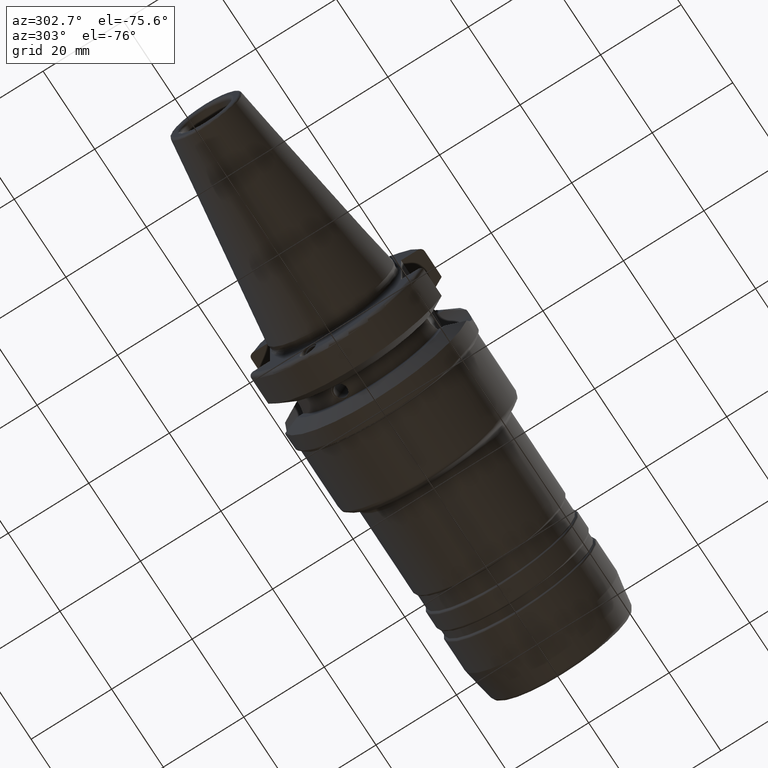
[diagram: clean part render]
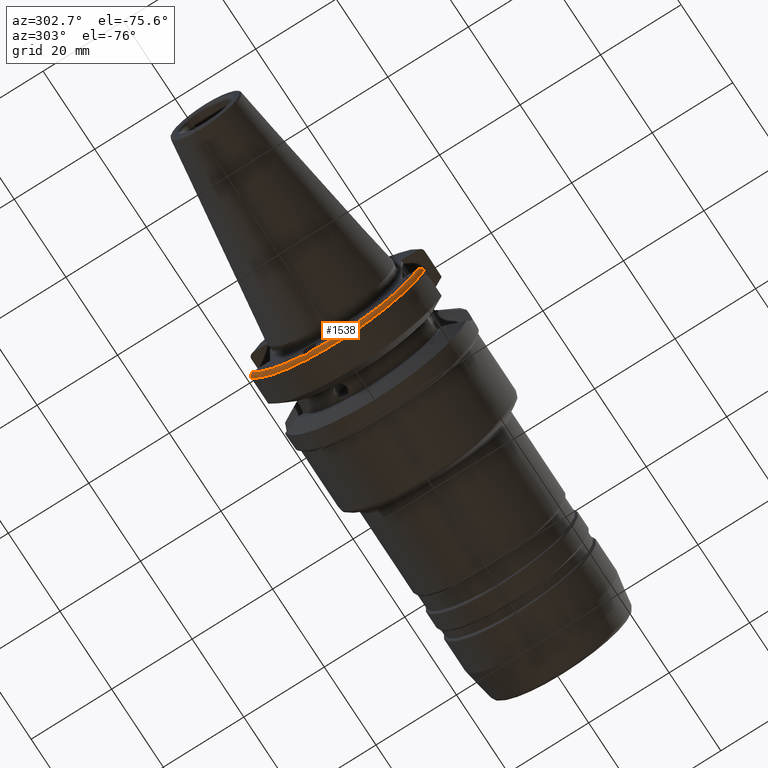
[diagram: same view with one face highlighted and labeled with its STEP entity id]
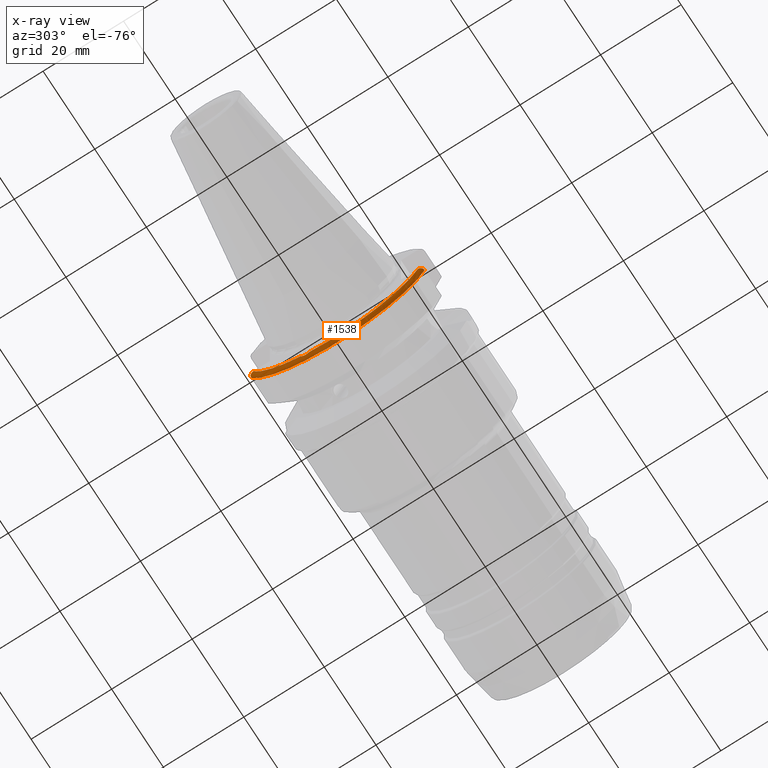
[diagram: x-ray of the same camera — body ghosted, the highlighted face saturated]
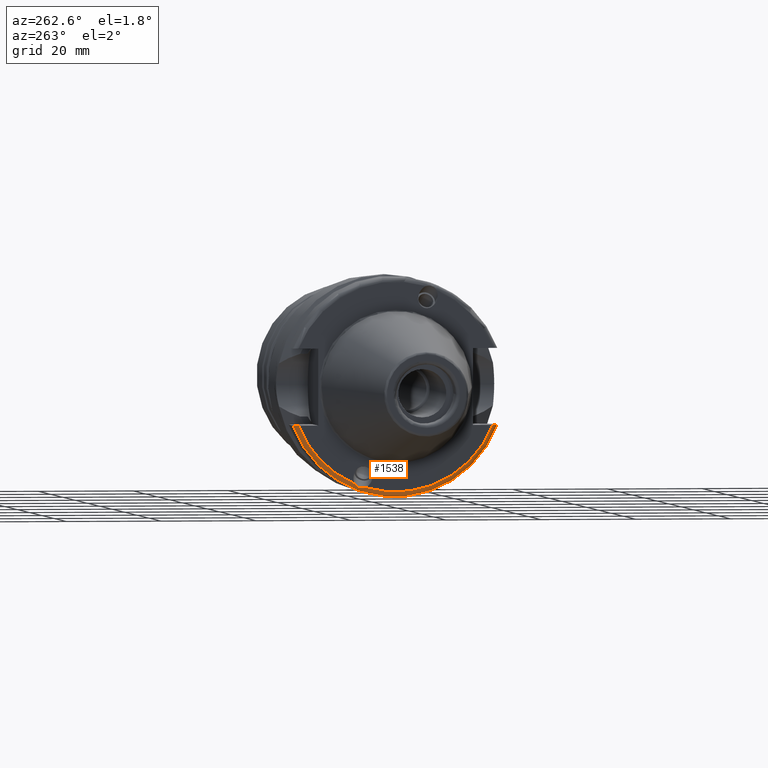
[diagram: same view with one face highlighted and labeled with its STEP entity id]
A machine part, auxiliary view. The second image highlights one B-rep face of the part: STEP entity #1538.
The next image is the same camera in x-ray: the body ghosted, the highlighted face saturated — about 0% of this face is hidden behind the body in this view.
A second angle (auxiliary view) of the same face is appended — the face is thin or edge-on in the first view.
In plain terms, the highlighted toroidal blend (fillet) surface has major radius 22 mm and minor (blend) radius 1 mm.
Its self-contained STEP definition (entity closure, byte-faithful):
#56=B_SPLINE_CURVE_WITH_KNOTS('',3,(#2793,#2794,#2795,#2796,#2797,#2798,
#2799,#2800,#2801,#2802,#2803,#2804,#2805,#2806),.UNSPECIFIED.,.F.,.F.,
(4,2,2,2,2,2,4),(-0.383450132328127,-0.351689221297584,-0.311522341711588,
-0.279107831710755,-0.246818888176327,-0.207066753659492,-0.173596618999697),
 .UNSPECIFIED.);
#63=B_SPLINE_CURVE_WITH_KNOTS('',3,(#2908,#2909,#2910,#2911,#2912,#2913,
#2914,#2915,#2916,#2917),.UNSPECIFIED.,.F.,.F.,(4,2,2,2,4),(0.,0.0362302924551293,
0.073702201526494,0.112799364340696,0.153429778670641),.UNSPECIFIED.);
#67=B_SPLINE_CURVE_WITH_KNOTS('',3,(#2975,#2976,#2977,#2978,#2979,#2980,
#2981,#2982,#2983,#2984),.UNSPECIFIED.,.F.,.F.,(4,2,2,2,4),(-0.153429778670641,
-0.112799364340696,-0.073702201526494,-0.0362302924551292,0.),
 .UNSPECIFIED.);
#370=FACE_OUTER_BOUND('',#472,.T.);
#472=EDGE_LOOP('',(#1329,#1330,#1331,#1332,#1333,#1334));
#565=CIRCLE('',#1727,22.);
#566=CIRCLE('',#1728,22.);
#580=CIRCLE('',#1756,23.);
#691=VERTEX_POINT('',#2790);
#692=VERTEX_POINT('',#2792);
#695=VERTEX_POINT('',#2813);
#696=VERTEX_POINT('',#2816);
#717=VERTEX_POINT('',#2907);
#727=VERTEX_POINT('',#2971);
#885=EDGE_CURVE('',#692,#691,#56,.T.);
#890=EDGE_CURVE('',#691,#695,#565,.T.);
#891=EDGE_CURVE('',#696,#692,#566,.T.);
#920=EDGE_CURVE('',#717,#696,#63,.T.);
#939=EDGE_CURVE('',#717,#727,#580,.T.);
#941=EDGE_CURVE('',#695,#727,#67,.T.);
#1329=ORIENTED_EDGE('',*,*,#885,.T.);
#1330=ORIENTED_EDGE('',*,*,#890,.T.);
#1331=ORIENTED_EDGE('',*,*,#941,.T.);
#1332=ORIENTED_EDGE('',*,*,#939,.F.);
#1333=ORIENTED_EDGE('',*,*,#920,.T.);
#1334=ORIENTED_EDGE('',*,*,#891,.T.);
#1464=TOROIDAL_SURFACE('',#1757,22.,1.00000000000001);
#1538=ADVANCED_FACE('',(#370),#1464,.T.);
#1727=AXIS2_PLACEMENT_3D('',#2815,#2127,#2128);
#1728=AXIS2_PLACEMENT_3D('',#2817,#2129,#2130);
#1756=AXIS2_PLACEMENT_3D('',#2972,#2206,#2207);
#1757=AXIS2_PLACEMENT_3D('',#2974,#2209,#2210);
#2127=DIRECTION('center_axis',(1.,1.62798202122572E-21,0.));
#2128=DIRECTION('ref_axis',(0.,0.,-1.));
#2129=DIRECTION('center_axis',(1.,1.62798202122572E-21,0.));
#2130=DIRECTION('ref_axis',(0.,0.,-1.));
#2206=DIRECTION('center_axis',(1.,1.62798202122572E-21,0.));
#2207=DIRECTION('ref_axis',(0.,0.,-1.));
#2209=DIRECTION('center_axis',(1.,1.62798202122572E-21,0.));
#2210=DIRECTION('ref_axis',(0.,0.,-1.));
#2790=CARTESIAN_POINT('',(2.,8.62571963431162,-20.2385019403673));
#2792=CARTESIAN_POINT('',(2.,6.40137369211843,-21.0480976540364));
#2793=CARTESIAN_POINT('Ctrl Pts',(1.99999999999999,6.40137369211843,-21.0480976540364));
#2794=CARTESIAN_POINT('Ctrl Pts',(1.99999999999999,6.51218075217939,-21.0925664729134));
#2795=CARTESIAN_POINT('Ctrl Pts',(2.00839141698566,6.632537505233,-21.1250853644164));
#2796=CARTESIAN_POINT('Ctrl Pts',(2.03416784761472,6.92628989879229,-21.1651926793778));
#2797=CARTESIAN_POINT('Ctrl Pts',(2.05162151175562,7.09315183259901,-21.1623301132091));
#2798=CARTESIAN_POINT('Ctrl Pts',(2.07231112910132,7.39163000172577,-21.11847888572));
#2799=CARTESIAN_POINT('Ctrl Pts',(2.07774372051908,7.52319126364718,-21.0850375933111));
#2800=CARTESIAN_POINT('Ctrl Pts',(2.07808045348674,7.77713511641414,-20.9935506719207));
#2801=CARTESIAN_POINT('Ctrl Pts',(2.07302683632531,7.89936063694556,-20.9356688169513));
#2802=CARTESIAN_POINT('Ctrl Pts',(2.0530921798178,8.15555780805866,-20.7805312349047));
#2803=CARTESIAN_POINT('Ctrl Pts',(2.03606073743508,8.28494218361154,-20.6777578738726));
#2804=CARTESIAN_POINT('Ctrl Pts',(2.00930022600955,8.49059272091547,-20.4567273373599));
#2805=CARTESIAN_POINT('Ctrl Pts',(1.99999999999999,8.56640089026486,-20.349439718379));
#2806=CARTESIAN_POINT('Ctrl Pts',(1.99999999999999,8.62571963431161,-20.2385019403673));
#2813=CARTESIAN_POINT('',(2.,20.4743131752936,-8.05));
#2815=CARTESIAN_POINT('Origin',(2.,2.08173882559189E-15,0.));
#2816=CARTESIAN_POINT('',(2.,-20.4743131752936,-8.05));
#2817=CARTESIAN_POINT('Origin',(2.,2.08173882559189E-15,0.));
#2907=CARTESIAN_POINT('',(2.99999999999999,-21.5452430944745,-8.05));
#2908=CARTESIAN_POINT('Ctrl Pts',(2.99999999999999,-21.5452430944745,-8.05));
#2909=CARTESIAN_POINT('Ctrl Pts',(2.8792323584829,-21.5452430944745,-8.05));
#2910=CARTESIAN_POINT('Ctrl Pts',(2.73736392622753,-21.5156543568949,-8.05));
#2911=CARTESIAN_POINT('Ctrl Pts',(2.51168046915071,-21.4185837950444,-8.05));
#2912=CARTESIAN_POINT('Ctrl Pts',(2.38899751698434,-21.3324722583086,-8.05));
#2913=CARTESIAN_POINT('Ctrl Pts',(2.21218447849375,-21.1484080721249,-8.05));
#2914=CARTESIAN_POINT('Ctrl Pts',(2.128361602777,-21.0163810455414,-8.05));
#2915=CARTESIAN_POINT('Ctrl Pts',(2.03008808262398,-20.7694601196341,-8.05));
#2916=CARTESIAN_POINT('Ctrl Pts',(1.99999999999999,-20.6097478897267,-8.05));
#2917=CARTESIAN_POINT('Ctrl Pts',(1.99999999999999,-20.4743131752936,-8.05));
#2971=CARTESIAN_POINT('',(2.99999999999999,21.5452430944745,-8.05));
#2972=CARTESIAN_POINT('Origin',(2.99999999999999,2.08174045357391E-15,0.));
#2974=CARTESIAN_POINT('Origin',(2.99999999999999,2.08174045357391E-15,0.));
#2975=CARTESIAN_POINT('Ctrl Pts',(1.99999999999999,20.4743131752936,-8.05));
#2976=CARTESIAN_POINT('Ctrl Pts',(1.99999999999999,20.6097478897267,-8.05));
#2977=CARTESIAN_POINT('Ctrl Pts',(2.03008808262398,20.7694601196341,-8.05));
#2978=CARTESIAN_POINT('Ctrl Pts',(2.128361602777,21.0163810455414,-8.05));
#2979=CARTESIAN_POINT('Ctrl Pts',(2.21218447849375,21.1484080721249,-8.05));
#2980=CARTESIAN_POINT('Ctrl Pts',(2.38899751698434,21.3324722583086,-8.05));
#2981=CARTESIAN_POINT('Ctrl Pts',(2.51168046915071,21.4185837950444,-8.05));
#2982=CARTESIAN_POINT('Ctrl Pts',(2.73736392622753,21.5156543568949,-8.05));
#2983=CARTESIAN_POINT('Ctrl Pts',(2.8792323584829,21.5452430944745,-8.05));
#2984=CARTESIAN_POINT('Ctrl Pts',(2.99999999999999,21.5452430944745,-8.05));